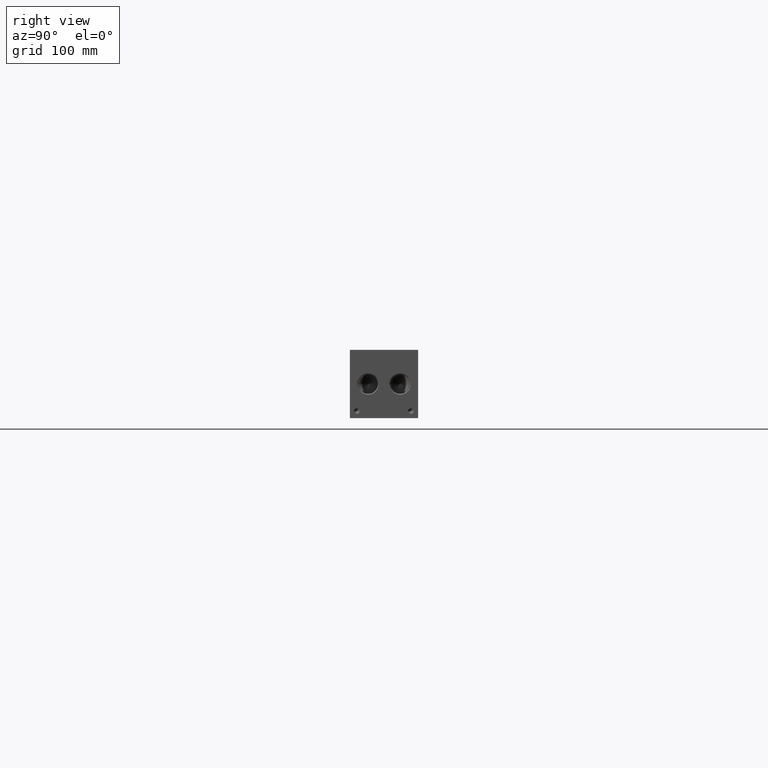
[diagram: clean part render]
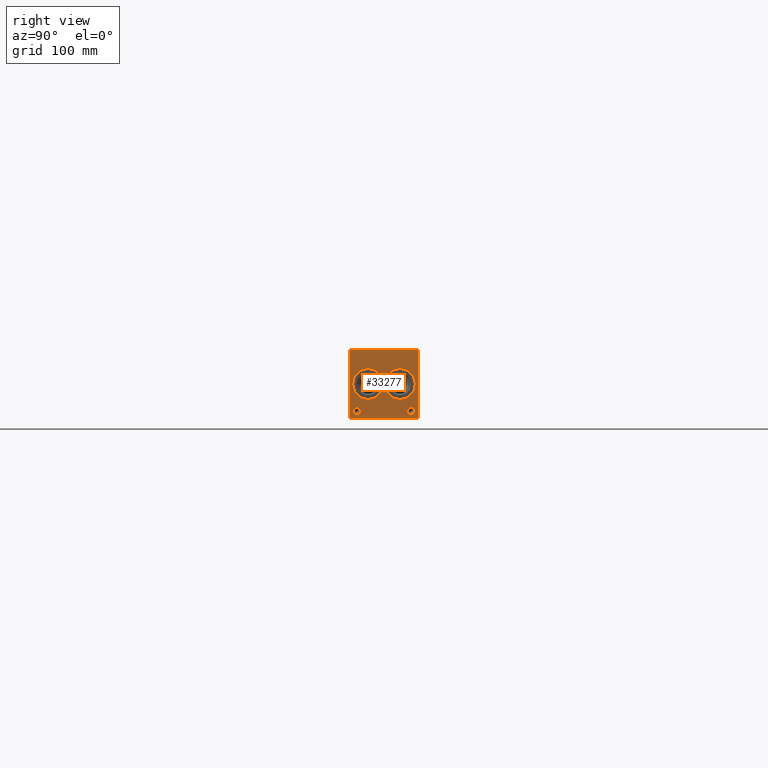
[diagram: same view with one face highlighted and labeled with its STEP entity id]
A machine part, right view. The second image highlights one B-rep face of the part: STEP entity #33277.
In plain terms, the highlighted planar face has unit normal (1, 0, 0).
Its self-contained STEP definition (entity closure, byte-faithful):
#1075=CIRCLE('',#34828,17.0688);
#1076=CIRCLE('',#34829,17.0688);
#1077=CIRCLE('',#34830,17.0688);
#1078=CIRCLE('',#34831,17.0688);
#1079=CIRCLE('',#34832,3.9624);
#1080=CIRCLE('',#34833,3.9624);
#1081=CIRCLE('',#34834,3.9624);
#1082=CIRCLE('',#34835,3.9624);
#3078=B_SPLINE_CURVE_WITH_KNOTS('',2,(#55015,#55016,#55017,#55018),
 .UNSPECIFIED.,.F.,.F.,(3,1,3),(0.,1.,2.),.UNSPECIFIED.);
#3080=B_SPLINE_CURVE_WITH_KNOTS('',2,(#55036,#55037,#55038,#55039),
 .UNSPECIFIED.,.F.,.F.,(3,1,3),(0.,1.,2.),.UNSPECIFIED.);
#3082=B_SPLINE_CURVE_WITH_KNOTS('',2,(#55085,#55086,#55087,#55088),
 .UNSPECIFIED.,.F.,.F.,(3,1,3),(0.,1.,2.),.UNSPECIFIED.);
#3084=B_SPLINE_CURVE_WITH_KNOTS('',2,(#55103,#55104,#55105,#55106),
 .UNSPECIFIED.,.F.,.F.,(3,1,3),(0.,1.,2.),.UNSPECIFIED.);
#3236=FACE_BOUND('',#6417,.T.);
#3237=FACE_BOUND('',#6418,.T.);
#3238=FACE_BOUND('',#6419,.T.);
#3239=FACE_BOUND('',#6420,.T.);
#3240=FACE_BOUND('',#6421,.T.);
#3241=FACE_BOUND('',#6422,.T.);
#4480=FACE_OUTER_BOUND('',#6416,.T.);
#6416=EDGE_LOOP('',(#26237,#26238,#26239,#26240));
#6417=EDGE_LOOP('',(#26241,#26242));
#6418=EDGE_LOOP('',(#26243,#26244));
#6419=EDGE_LOOP('',(#26245,#26246));
#6420=EDGE_LOOP('',(#26247,#26248));
#6421=EDGE_LOOP('',(#26249,#26250,#26251,#26252,#26253,#26254,#26255,#26256));
#6422=EDGE_LOOP('',(#26257,#26258,#26259,#26260,#26261,#26262,#26263,#26264,
#26265));
#7572=LINE('',#45531,#10248);
#9447=LINE('',#55048,#12123);
#9450=LINE('',#55054,#12126);
#9453=LINE('',#55060,#12129);
#9456=LINE('',#55066,#12132);
#9459=LINE('',#55072,#12135);
#9463=LINE('',#55114,#12139);
#9464=LINE('',#55116,#12140);
#9465=LINE('',#55117,#12141);
#9466=LINE('',#55136,#12142);
#9467=LINE('',#55138,#12143);
#9468=LINE('',#55140,#12144);
#9469=LINE('',#55142,#12145);
#9470=LINE('',#55144,#12146);
#9471=LINE('',#55146,#12147);
#9472=LINE('',#55148,#12148);
#9473=LINE('',#55149,#12149);
#10248=VECTOR('',#37076,10.);
#12123=VECTOR('',#40307,10.);
#12126=VECTOR('',#40312,10.);
#12129=VECTOR('',#40317,10.);
#12132=VECTOR('',#40322,10.);
#12135=VECTOR('',#40327,10.);
#12139=VECTOR('',#40335,10.);
#12140=VECTOR('',#40336,10.);
#12141=VECTOR('',#40337,10.);
#12142=VECTOR('',#40354,10.);
#12143=VECTOR('',#40355,10.);
#12144=VECTOR('',#40356,10.);
#12145=VECTOR('',#40357,10.);
#12146=VECTOR('',#40358,10.);
#12147=VECTOR('',#40359,10.);
#12148=VECTOR('',#40360,10.);
#12149=VECTOR('',#40361,10.);
#12913=VERTEX_POINT('',#45528);
#12914=VERTEX_POINT('',#45530);
#14656=VERTEX_POINT('',#55013);
#14657=VERTEX_POINT('',#55014);
#14660=VERTEX_POINT('',#55035);
#14662=VERTEX_POINT('',#55047);
#14664=VERTEX_POINT('',#55053);
#14666=VERTEX_POINT('',#55059);
#14668=VERTEX_POINT('',#55065);
#14670=VERTEX_POINT('',#55071);
#14672=VERTEX_POINT('',#55084);
#14674=VERTEX_POINT('',#55113);
#14675=VERTEX_POINT('',#55115);
#14676=VERTEX_POINT('',#55118);
#14677=VERTEX_POINT('',#55119);
#14678=VERTEX_POINT('',#55122);
#14679=VERTEX_POINT('',#55123);
#14680=VERTEX_POINT('',#55126);
#14681=VERTEX_POINT('',#55127);
#14682=VERTEX_POINT('',#55130);
#14683=VERTEX_POINT('',#55131);
#14684=VERTEX_POINT('',#55134);
#14685=VERTEX_POINT('',#55135);
#14686=VERTEX_POINT('',#55137);
#14687=VERTEX_POINT('',#55139);
#14688=VERTEX_POINT('',#55141);
#14689=VERTEX_POINT('',#55143);
#14690=VERTEX_POINT('',#55145);
#14691=VERTEX_POINT('',#55147);
#16305=EDGE_CURVE('',#12913,#12914,#7572,.T.);
#18887=EDGE_CURVE('',#14656,#14657,#3078,.T.);
#18891=EDGE_CURVE('',#14660,#14656,#3080,.T.);
#18894=EDGE_CURVE('',#14662,#14660,#9447,.T.);
#18897=EDGE_CURVE('',#14664,#14662,#9450,.T.);
#18900=EDGE_CURVE('',#14666,#14664,#9453,.T.);
#18903=EDGE_CURVE('',#14668,#14666,#9456,.T.);
#18906=EDGE_CURVE('',#14670,#14668,#9459,.T.);
#18909=EDGE_CURVE('',#14672,#14670,#3082,.T.);
#18912=EDGE_CURVE('',#14657,#14672,#3084,.T.);
#18914=EDGE_CURVE('',#12913,#14674,#9463,.T.);
#18915=EDGE_CURVE('',#14674,#14675,#9464,.T.);
#18916=EDGE_CURVE('',#12914,#14675,#9465,.T.);
#18917=EDGE_CURVE('',#14676,#14677,#1075,.T.);
#18918=EDGE_CURVE('',#14677,#14676,#1076,.T.);
#18919=EDGE_CURVE('',#14678,#14679,#1077,.T.);
#18920=EDGE_CURVE('',#14679,#14678,#1078,.T.);
#18921=EDGE_CURVE('',#14680,#14681,#1079,.T.);
#18922=EDGE_CURVE('',#14681,#14680,#1080,.T.);
#18923=EDGE_CURVE('',#14682,#14683,#1081,.T.);
#18924=EDGE_CURVE('',#14683,#14682,#1082,.T.);
#18925=EDGE_CURVE('',#14684,#14685,#9466,.T.);
#18926=EDGE_CURVE('',#14685,#14686,#9467,.T.);
#18927=EDGE_CURVE('',#14686,#14687,#9468,.T.);
#18928=EDGE_CURVE('',#14687,#14688,#9469,.T.);
#18929=EDGE_CURVE('',#14688,#14689,#9470,.T.);
#18930=EDGE_CURVE('',#14689,#14690,#9471,.T.);
#18931=EDGE_CURVE('',#14690,#14691,#9472,.T.);
#18932=EDGE_CURVE('',#14691,#14684,#9473,.T.);
#26237=ORIENTED_EDGE('',*,*,#18914,.T.);
#26238=ORIENTED_EDGE('',*,*,#18915,.T.);
#26239=ORIENTED_EDGE('',*,*,#18916,.F.);
#26240=ORIENTED_EDGE('',*,*,#16305,.F.);
#26241=ORIENTED_EDGE('',*,*,#18917,.T.);
#26242=ORIENTED_EDGE('',*,*,#18918,.T.);
#26243=ORIENTED_EDGE('',*,*,#18919,.T.);
#26244=ORIENTED_EDGE('',*,*,#18920,.T.);
#26245=ORIENTED_EDGE('',*,*,#18921,.T.);
#26246=ORIENTED_EDGE('',*,*,#18922,.T.);
#26247=ORIENTED_EDGE('',*,*,#18923,.T.);
#26248=ORIENTED_EDGE('',*,*,#18924,.T.);
#26249=ORIENTED_EDGE('',*,*,#18925,.T.);
#26250=ORIENTED_EDGE('',*,*,#18926,.T.);
#26251=ORIENTED_EDGE('',*,*,#18927,.T.);
#26252=ORIENTED_EDGE('',*,*,#18928,.T.);
#26253=ORIENTED_EDGE('',*,*,#18929,.T.);
#26254=ORIENTED_EDGE('',*,*,#18930,.T.);
#26255=ORIENTED_EDGE('',*,*,#18931,.T.);
#26256=ORIENTED_EDGE('',*,*,#18932,.T.);
#26257=ORIENTED_EDGE('',*,*,#18887,.T.);
#26258=ORIENTED_EDGE('',*,*,#18912,.T.);
#26259=ORIENTED_EDGE('',*,*,#18909,.T.);
#26260=ORIENTED_EDGE('',*,*,#18906,.T.);
#26261=ORIENTED_EDGE('',*,*,#18903,.T.);
#26262=ORIENTED_EDGE('',*,*,#18900,.T.);
#26263=ORIENTED_EDGE('',*,*,#18897,.T.);
#26264=ORIENTED_EDGE('',*,*,#18894,.T.);
#26265=ORIENTED_EDGE('',*,*,#18891,.T.);
#31200=PLANE('',#34827);
#33277=ADVANCED_FACE('',(#4480,#3236,#3237,#3238,#3239,#3240,#3241),#31200,
 .T.);
#34827=AXIS2_PLACEMENT_3D('',#55112,#40333,#40334);
#34828=AXIS2_PLACEMENT_3D('',#55120,#40338,#40339);
#34829=AXIS2_PLACEMENT_3D('',#55121,#40340,#40341);
#34830=AXIS2_PLACEMENT_3D('',#55124,#40342,#40343);
#34831=AXIS2_PLACEMENT_3D('',#55125,#40344,#40345);
#34832=AXIS2_PLACEMENT_3D('',#55128,#40346,#40347);
#34833=AXIS2_PLACEMENT_3D('',#55129,#40348,#40349);
#34834=AXIS2_PLACEMENT_3D('',#55132,#40350,#40351);
#34835=AXIS2_PLACEMENT_3D('',#55133,#40352,#40353);
#37076=DIRECTION('',(0.,0.,1.));
#40307=DIRECTION('',(0.,1.,0.));
#40312=DIRECTION('',(0.,0.,1.));
#40317=DIRECTION('',(0.,-1.,0.));
#40322=DIRECTION('',(0.,0.,-1.));
#40327=DIRECTION('',(0.,-1.,0.));
#40333=DIRECTION('center_axis',(1.,0.,0.));
#40334=DIRECTION('ref_axis',(0.,1.,0.));
#40335=DIRECTION('',(0.,1.,0.));
#40336=DIRECTION('',(0.,0.,1.));
#40337=DIRECTION('',(0.,1.,0.));
#40338=DIRECTION('center_axis',(-1.,0.,0.));
#40339=DIRECTION('ref_axis',(0.,1.,0.));
#40340=DIRECTION('center_axis',(-1.,0.,0.));
#40341=DIRECTION('ref_axis',(0.,1.,0.));
#40342=DIRECTION('center_axis',(-1.,0.,0.));
#40343=DIRECTION('ref_axis',(0.,1.,0.));
#40344=DIRECTION('center_axis',(-1.,0.,0.));
#40345=DIRECTION('ref_axis',(0.,1.,0.));
#40346=DIRECTION('center_axis',(-1.,0.,0.));
#40347=DIRECTION('ref_axis',(0.,1.,0.));
#40348=DIRECTION('center_axis',(-1.,0.,0.));
#40349=DIRECTION('ref_axis',(0.,1.,0.));
#40350=DIRECTION('center_axis',(-1.,0.,0.));
#40351=DIRECTION('ref_axis',(0.,1.,0.));
#40352=DIRECTION('center_axis',(-1.,0.,0.));
#40353=DIRECTION('ref_axis',(0.,1.,0.));
#40354=DIRECTION('',(0.,-1.,0.));
#40355=DIRECTION('',(0.,0.,1.));
#40356=DIRECTION('',(0.,-1.,0.));
#40357=DIRECTION('',(0.,0.,1.));
#40358=DIRECTION('',(0.,1.,0.));
#40359=DIRECTION('',(0.,0.,-1.));
#40360=DIRECTION('',(0.,-1.,0.));
#40361=DIRECTION('',(0.,0.,-1.));
#45528=CARTESIAN_POINT('',(809.625,0.,0.));
#45530=CARTESIAN_POINT('',(809.625,0.,76.2));
#45531=CARTESIAN_POINT('',(809.625,0.,0.));
#55013=CARTESIAN_POINT('',(809.625,8.90436720235939,63.8657681439707));
#55014=CARTESIAN_POINT('',(809.625,9.66080965453199,62.3477373726039));
#55015=CARTESIAN_POINT('Ctrl Pts',(809.625,8.90436720235939,63.8657681439707));
#55016=CARTESIAN_POINT('Ctrl Pts',(809.625,9.25943202684857,63.6239123939564));
#55017=CARTESIAN_POINT('Ctrl Pts',(809.625,9.66080965453199,62.8777616758269));
#55018=CARTESIAN_POINT('Ctrl Pts',(809.625,9.66080965453199,62.3477373726039));
#55035=CARTESIAN_POINT('',(809.625,7.2422521543883,64.2619999046326));
#55036=CARTESIAN_POINT('Ctrl Pts',(809.625,7.2422521543883,64.2619999046326));
#55037=CARTESIAN_POINT('Ctrl Pts',(809.625,7.80829752676236,64.2619999046326));
#55038=CARTESIAN_POINT('Ctrl Pts',(809.625,8.60076104808604,64.0767486918556));
#55039=CARTESIAN_POINT('Ctrl Pts',(809.625,8.90436720235939,63.8657681439707));
#55047=CARTESIAN_POINT('',(809.625,5.64703337769779,64.2619999046326));
#55048=CARTESIAN_POINT('',(809.625,2.82351668884889,64.2619999046326));
#55053=CARTESIAN_POINT('',(809.625,5.64703337769779,57.912));
#55054=CARTESIAN_POINT('',(809.625,5.64703337769779,28.956));
#55059=CARTESIAN_POINT('',(809.625,6.49095556923729,57.912));
#55060=CARTESIAN_POINT('',(809.625,3.24547778461864,57.912));
#55065=CARTESIAN_POINT('',(809.625,6.49095556923729,60.2790988299279));
#55066=CARTESIAN_POINT('',(809.625,6.49095556923729,30.1395494149639));
#55071=CARTESIAN_POINT('',(809.625,7.20623108523723,60.2790988299279));
#55072=CARTESIAN_POINT('',(809.625,3.60311554261861,60.2790988299279));
#55084=CARTESIAN_POINT('',(809.625,9.1050560162011,60.9377698086904));
#55085=CARTESIAN_POINT('Ctrl Pts',(809.625,9.1050560162011,60.9377698086904));
#55086=CARTESIAN_POINT('Ctrl Pts',(809.625,8.77572052681983,60.6135801863307));
#55087=CARTESIAN_POINT('Ctrl Pts',(809.625,7.88548553208609,60.2790988299279));
#55088=CARTESIAN_POINT('Ctrl Pts',(809.625,7.20623108523723,60.2790988299279));
#55103=CARTESIAN_POINT('Ctrl Pts',(809.625,9.66080965453199,62.3477373726039));
#55104=CARTESIAN_POINT('Ctrl Pts',(809.625,9.66080965453199,61.9360680108774));
#55105=CARTESIAN_POINT('Ctrl Pts',(809.625,9.3674952343018,61.1950631597695));
#55106=CARTESIAN_POINT('Ctrl Pts',(809.625,9.1050560162011,60.9377698086904));
#55112=CARTESIAN_POINT('Origin',(809.625,0.,0.));
#55113=CARTESIAN_POINT('',(809.625,76.2,0.));
#55114=CARTESIAN_POINT('',(809.625,0.,0.));
#55115=CARTESIAN_POINT('',(809.625,76.2,76.2));
#55116=CARTESIAN_POINT('',(809.625,76.2,0.));
#55117=CARTESIAN_POINT('',(809.625,0.,76.2));
#55118=CARTESIAN_POINT('',(809.625,37.3126,38.1));
#55119=CARTESIAN_POINT('',(809.625,3.175,38.1));
#55120=CARTESIAN_POINT('Origin',(809.625,20.2438,38.1));
#55121=CARTESIAN_POINT('Origin',(809.625,20.2438,38.1));
#55122=CARTESIAN_POINT('',(809.625,73.025,38.1));
#55123=CARTESIAN_POINT('',(809.625,38.8874,38.1));
#55124=CARTESIAN_POINT('Origin',(809.625,55.9562,38.1));
#55125=CARTESIAN_POINT('Origin',(809.625,55.9562,38.1));
#55126=CARTESIAN_POINT('',(809.625,11.8872,7.9248));
#55127=CARTESIAN_POINT('',(809.625,3.9624,7.9248));
#55128=CARTESIAN_POINT('Origin',(809.625,7.9248,7.9248));
#55129=CARTESIAN_POINT('Origin',(809.625,7.9248,7.9248));
#55130=CARTESIAN_POINT('',(809.625,72.2376,7.9248));
#55131=CARTESIAN_POINT('',(809.625,64.3128,7.9248));
#55132=CARTESIAN_POINT('Origin',(809.625,68.2752,7.9248));
#55133=CARTESIAN_POINT('Origin',(809.625,68.2752,7.9248));
#55134=CARTESIAN_POINT('',(809.625,66.545365271453,57.912));
#55135=CARTESIAN_POINT('',(809.625,65.7014430799135,57.912));
#55136=CARTESIAN_POINT('',(809.625,33.2726826357265,57.912));
#55137=CARTESIAN_POINT('',(809.625,65.7014430799135,63.5107033194816));
#55138=CARTESIAN_POINT('',(809.625,65.7014430799135,28.956));
#55139=CARTESIAN_POINT('',(809.625,63.5710541329784,63.5107033194816));
#55140=CARTESIAN_POINT('',(809.625,32.8507215399568,63.5107033194816));
#55141=CARTESIAN_POINT('',(809.625,63.5710541329784,64.2619999046326));
#55142=CARTESIAN_POINT('',(809.625,63.5710541329784,31.7553516597408));
#55143=CARTESIAN_POINT('',(809.625,68.6757542183881,64.2619999046326));
#55144=CARTESIAN_POINT('',(809.625,31.7855270664892,64.2619999046326));
#55145=CARTESIAN_POINT('',(809.625,68.6757542183881,63.5107033194816));
#55146=CARTESIAN_POINT('',(809.625,68.6757542183881,32.1309999523163));
#55147=CARTESIAN_POINT('',(809.625,66.545365271453,63.5107033194816));
#55148=CARTESIAN_POINT('',(809.625,34.337877109194,63.5107033194816));
#55149=CARTESIAN_POINT('',(809.625,66.545365271453,31.7553516597408));